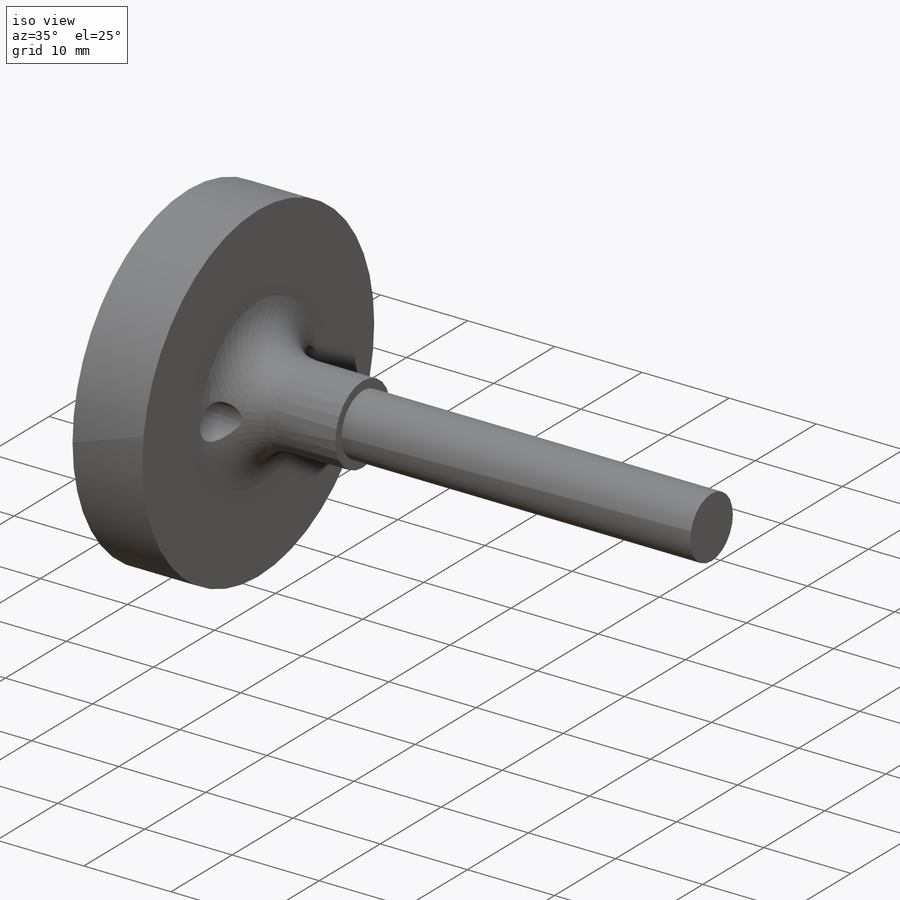
[diagram: iso view]
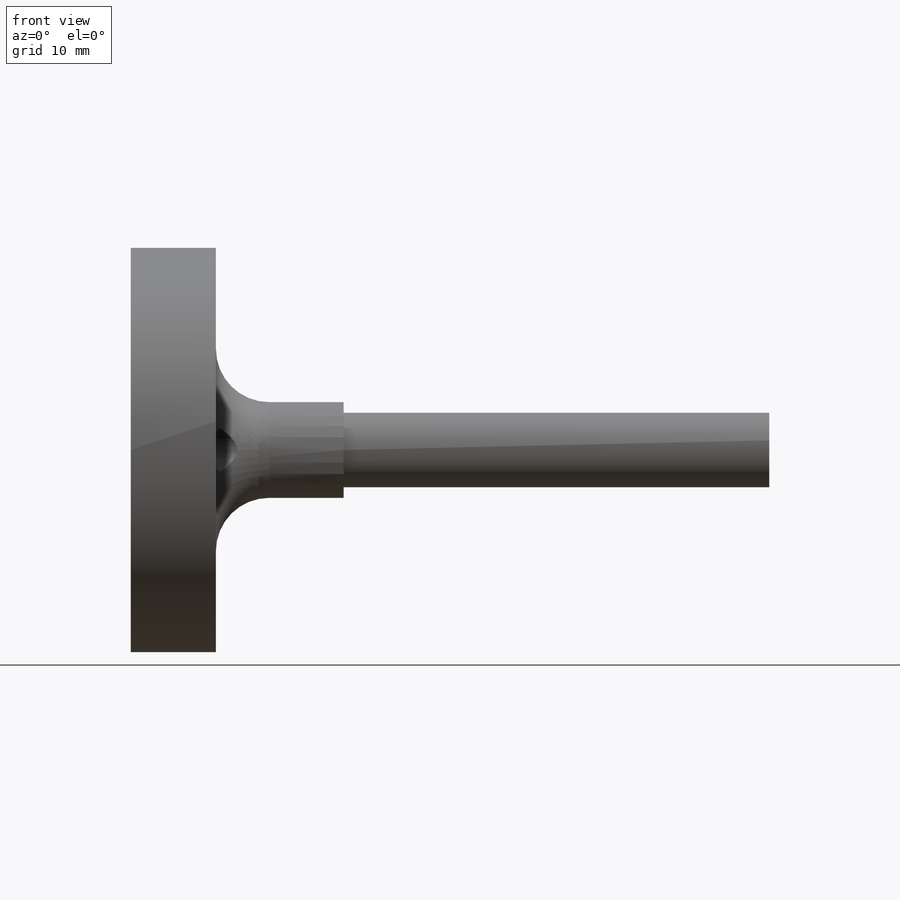
[diagram: front view]
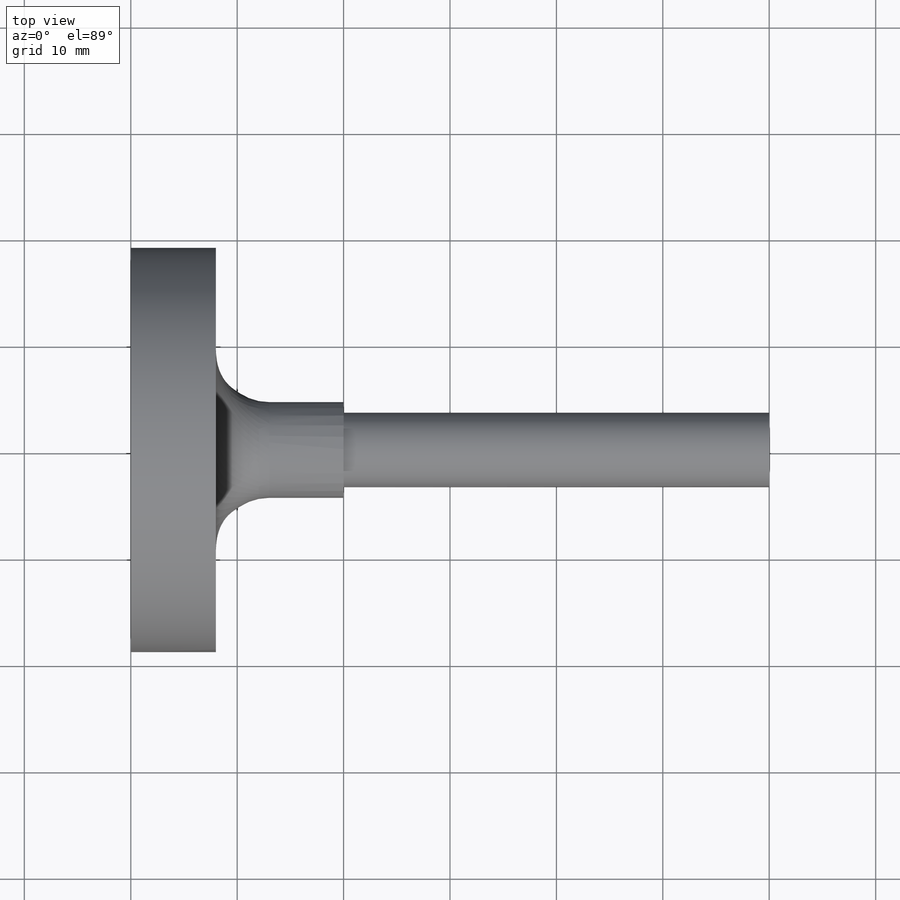
[diagram: top view]
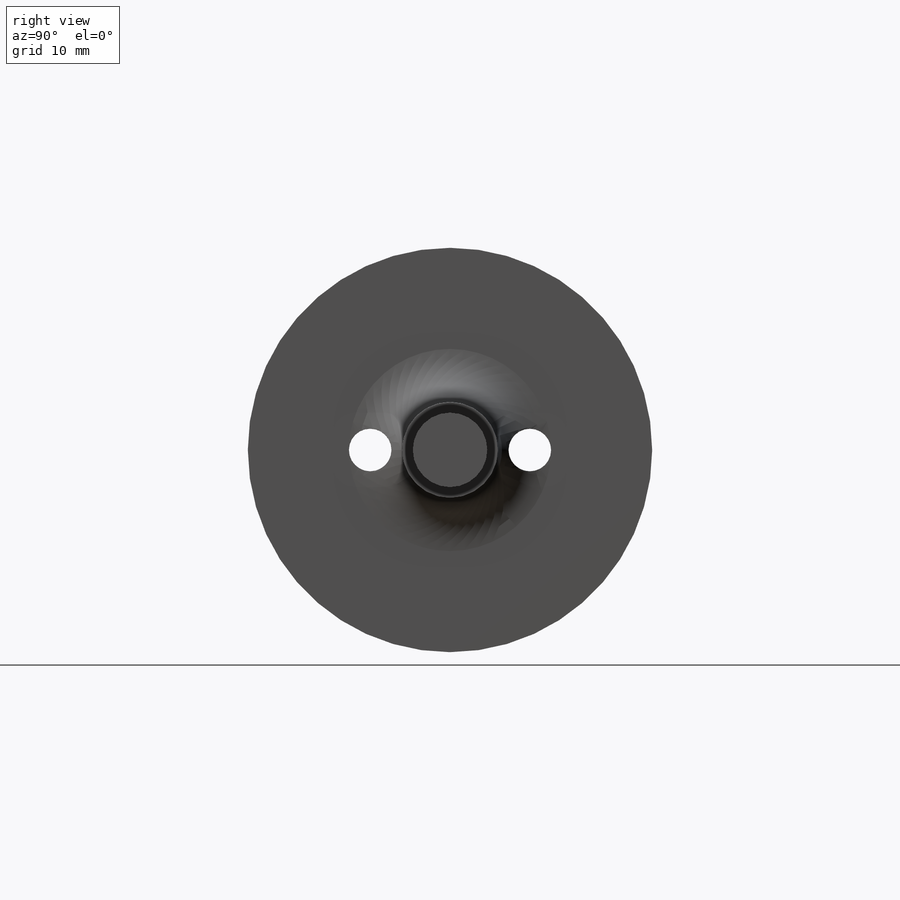
[diagram: right view]
SOLIDWORKS PART (.sldprt)
format: sldprt  version: not decoded by parser v0  size: 199,168 bytes
history: native  units: mm
features: sketch x2, material x1, revolve x1, fillet x1, cut_extrude x1 (+16 scaffold rows collapsed)
feature tree (22):
  scaffold x16  (default folders/planes/origin — collapsed)
  material  "Stainless Steel (ferritic)"
  sketch  "Sketch1"  dims[D1=3.5mm D2=1.0mm D3=12.0mm D4=19.0mm D5=8.0mm D6=40.0mm]
  revolve  "Revolve1"  Angle=360deg
  fillet  "Fillet1"  Radius=5mm
  sketch  "Sketch2"  dims[D1=4.0mm D2=15.0mm]
  cut_extrude  "Cut-Extrude1"  Depth=10mm
decode coverage: 5 of 5 modeling features carry decoded parameters
note: suppression state not decoded; provenance and decode notes live in map.json
